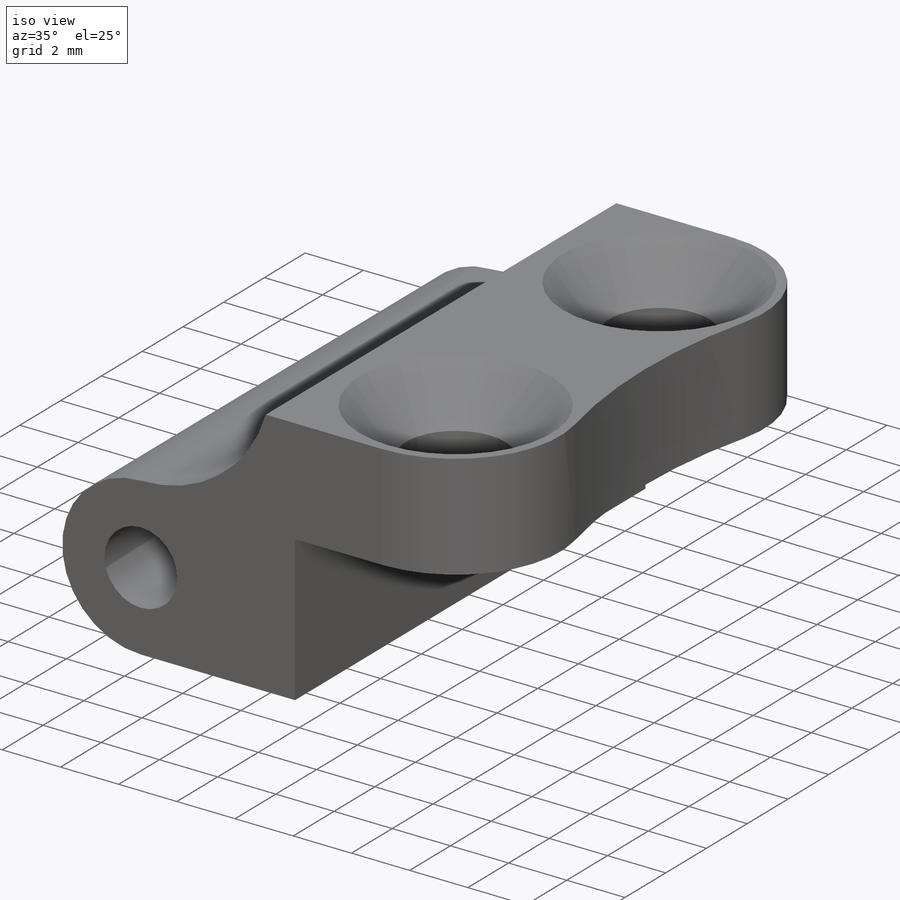
[diagram: iso view]
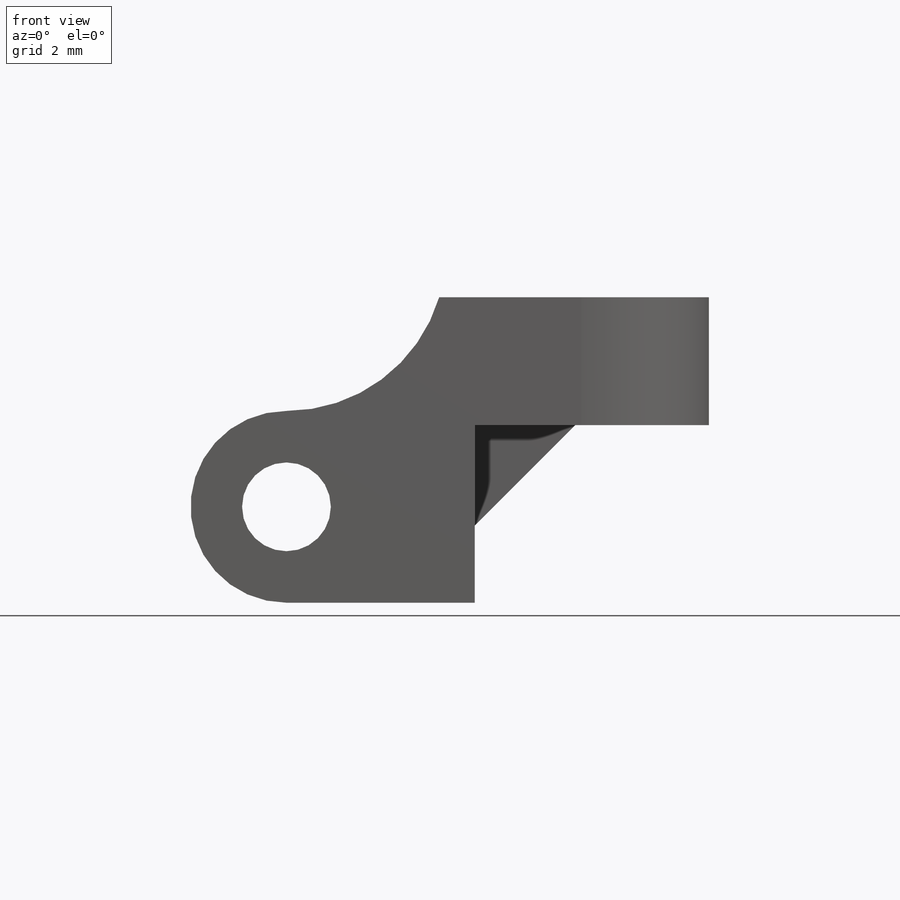
[diagram: front view]
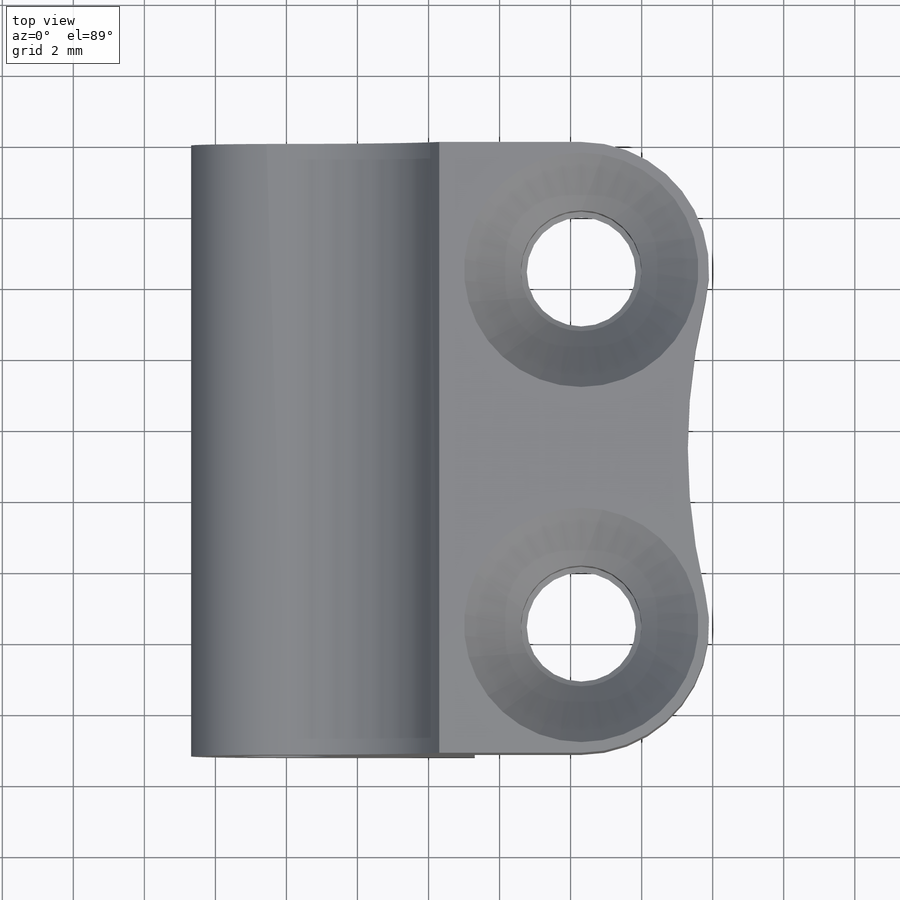
[diagram: top view]
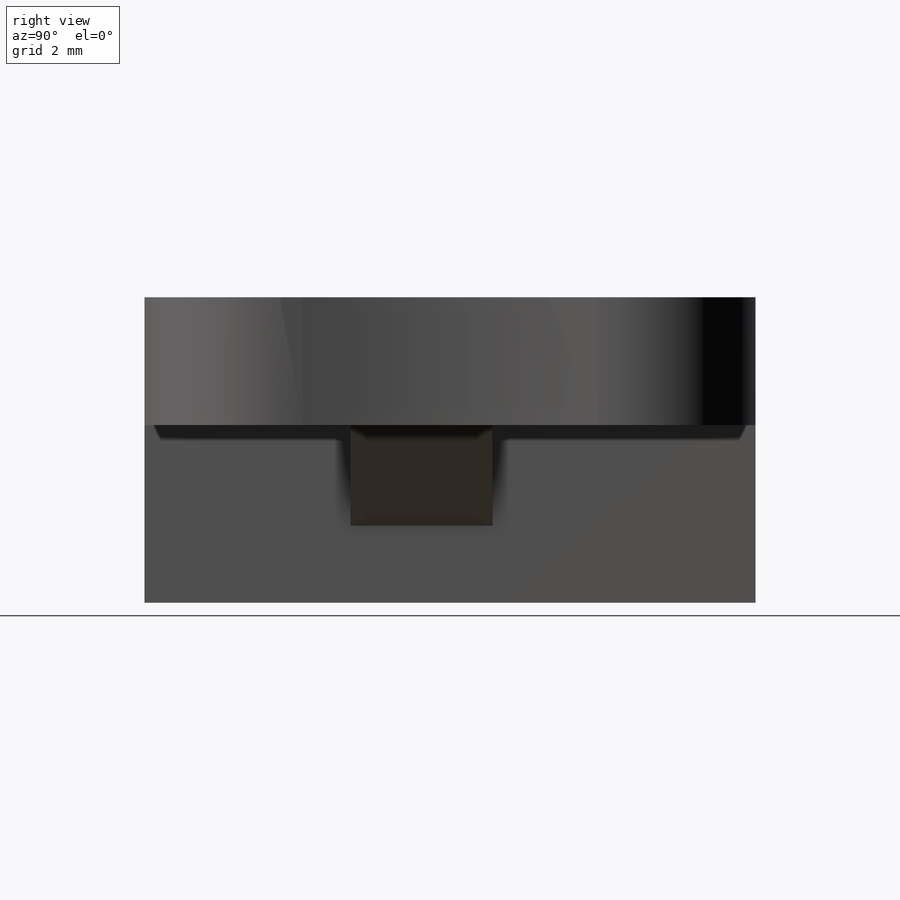
[diagram: right view]
SOLIDWORKS PART (.sldprt)
format: sldprt  version: not decoded by parser v0  size: 257,024 bytes
history: native  units: mm
features: sketch x6, plane x5, extrude x3, material x1, cut_extrude x1, hole x1 (+10 scaffold rows collapsed)
feature tree (27):
  scaffold x10  (default folders/planes/origin — collapsed)
  material  "材质 <未指定>"
  plane  "前视基准面"
  plane  "上视基准面"
  plane  "右视基准面"
  sketch  "草图1"  dims[D1=2.5mm D2=5.4mm D3=8.0mm D4=5.0mm D5=7.5mm D6=3.6mm D7=8.5mm]
  extrude  "凸台-拉伸1"  Depth=17.2mm
  sketch  "草图2"  dims[c1.D3=3.0mm c1.D4=7.2mm c1.D5=~12.907467mm c1.D1=5.0mm c1.D2=4.0mm c2.D5=7.0mm]
  cut_extrude  "切除-拉伸1"  [1 undecoded]
  hole  "打孔尺寸(%根据)开槽半沉头木螺钉的类型1"  [1 undecoded]
  sketch  "3D草图1"
  sketch  "草图3"  dims[hole-wizard template sketch: 39 standard entries collapsed; hole parameters kept: c13.孔直径=3.4mm c13.孔深度=3.5mm c13.近端锥形沉头孔直径=6.6mm c13.D4=~33.297463mm c13.近端锥形沉头孔角度=90.0deg c14.D5=~14.816244mm c14.导头角度=118.0deg]
  plane  "基准面1"  Offset=6mm
  sketch  "草图4"  dims[D1=4.0mm]
  extrude  "凸台-拉伸2"  Depth=4mm
  plane  "基准面2"  Offset=7.4mm
  sketch  "草图5"  dims[D1=0.0mm]
  extrude  "凸台-拉伸3"  Depth=4mm
decode coverage: 8 of 11 modeling features carry decoded parameters
note: ~ marks probable driven/reference dimensions
note: 2 parameter values undecoded
note: suppression state not decoded; provenance and decode notes live in map.json
